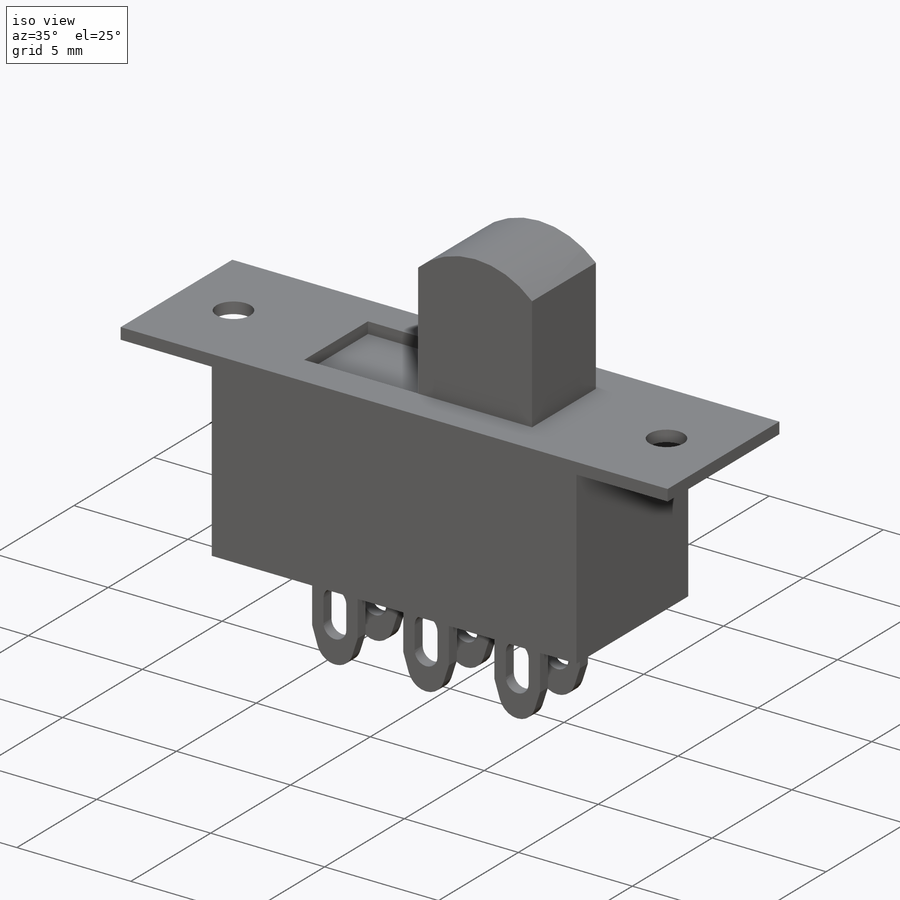
[diagram: iso view]
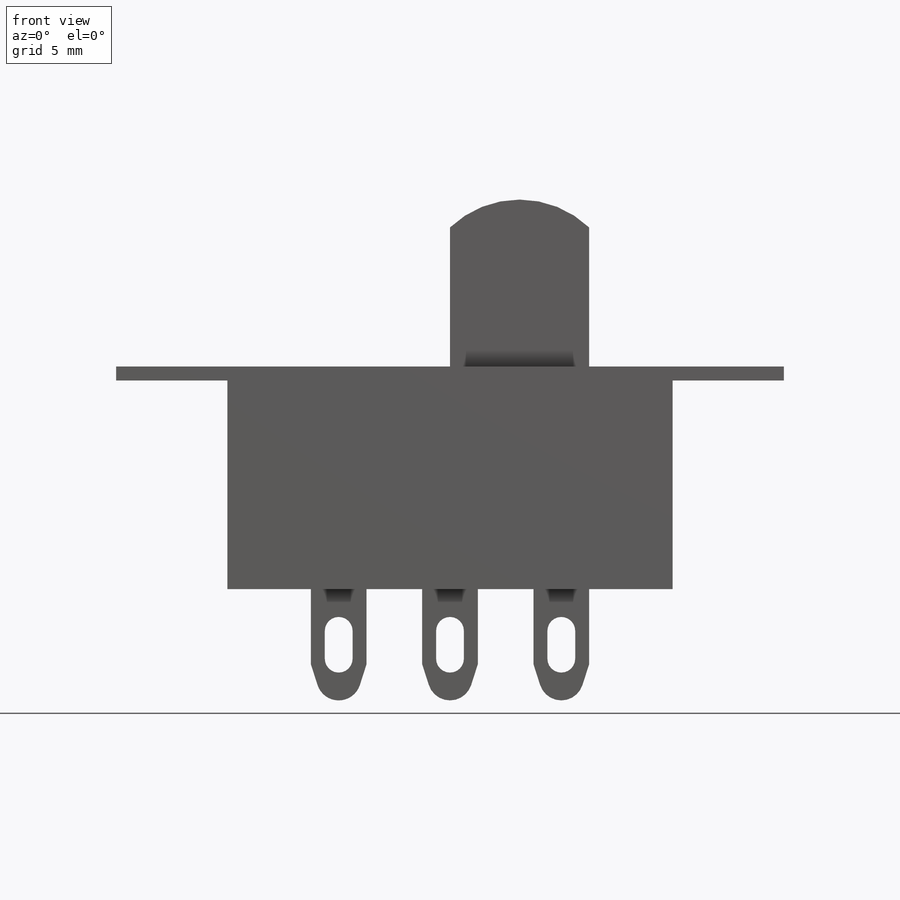
[diagram: front view]
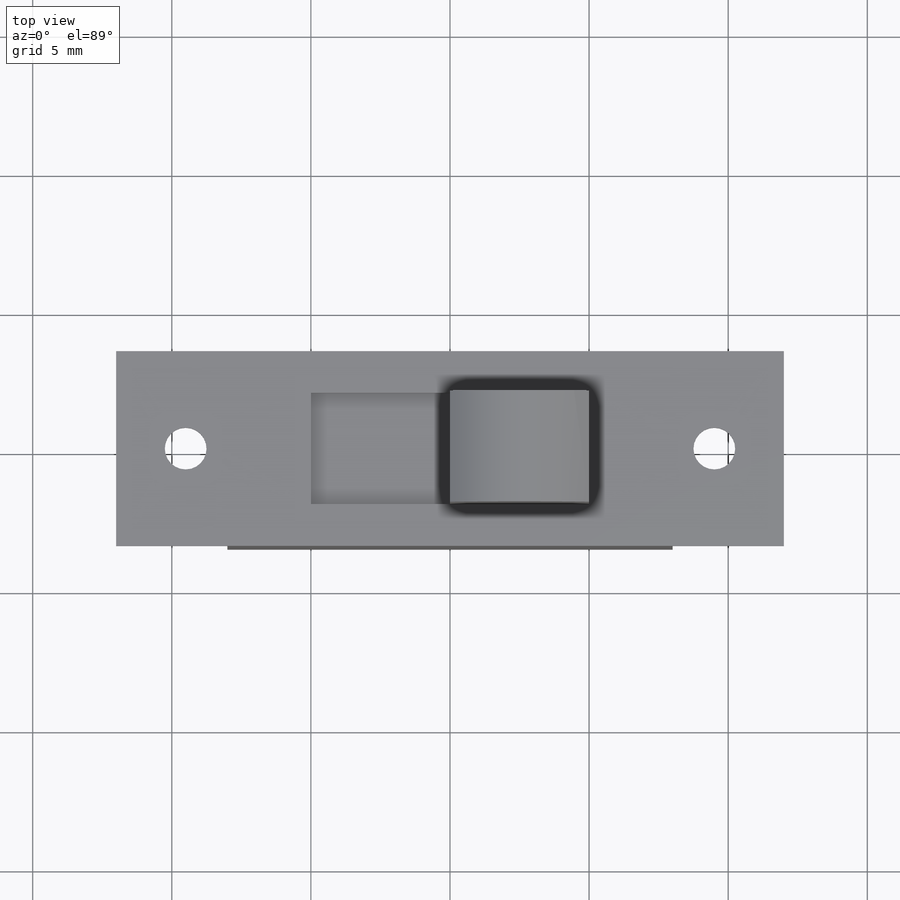
[diagram: top view]
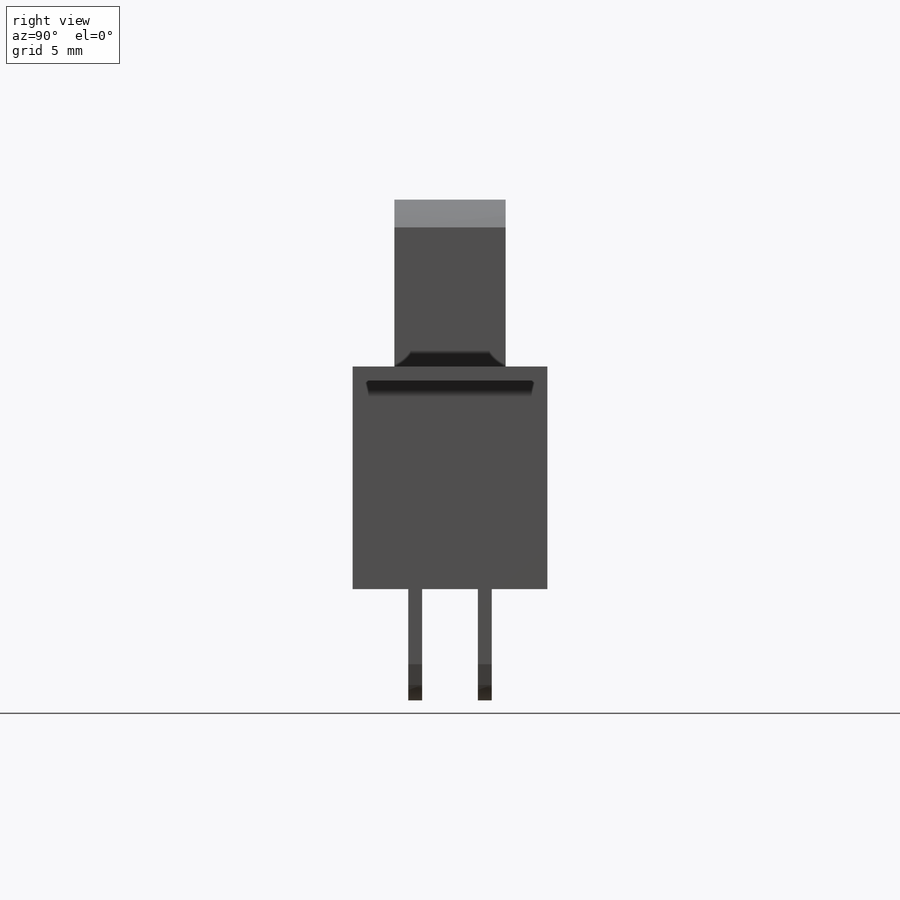
[diagram: right view]
SOLIDWORKS PART (.sldprt)
format: sldprt  version: not decoded by parser v0  size: 369,664 bytes
history: native  units: mm
features: sketch x5, plane x3, extrude x3, cut_extrude x2, material x1, pattern_linear x1 (+9 scaffold rows collapsed)
feature tree (24):
  scaffold x9  (default folders/planes/origin — collapsed)
  material  "ABS"
  plane  "Ebene vorne"
  plane  "Ebene oben"
  plane  "Ebene rechts"
  sketch  "Skizze1"  dims[D1=16.0mm D2=8.0mm D3=0.5mm D4=24.0mm D5=1.0mm D6=6.0mm D7=5.0mm D8=7.0mm]
  extrude  "Aufsatz-Linear austragen1"  Depth=7mm
  extrude  "Aufsatz-Linear austragen2"  [1 undecoded]
  sketch  "Skizze1<3>"  dims[D1=4.0mm]
  sketch  "Skizze2"  dims[c1.D1=~0.569477mm c1.D4=0.8mm c1.D6=0.5mm c2.D1=4.0mm c2.D2=2.0mm c2.D3=2.7mm c2.D5=1.0mm c2.D7=2.0mm c2.D8=4.0mm]
  extrude  "Aufsatz-Linear austragen3"  Depth=0.5mm
  pattern_linear  "Lineares Muster1"  Count1=3 Count2=2 Spacing1=4mm Spacing2=2.5mm
  sketch  "Skizze3"  dims[D1=~19.22846mm D2=19.0mm]
  cut_extrude  "Schnitt-Linear austragen1"  [1 undecoded]
  sketch  "Skizze4"  dims[c1.D1=~4.110817mm c1.D2=~10.623708mm c2.D1=5.0mm]
  cut_extrude  "Schnitt-Linear austragen2"  Depth=0.5mm
decode coverage: 9 of 11 modeling features carry decoded parameters
note: ~ marks probable driven/reference dimensions
note: 2 parameter values undecoded
note: suppression state not decoded; provenance and decode notes live in map.json
